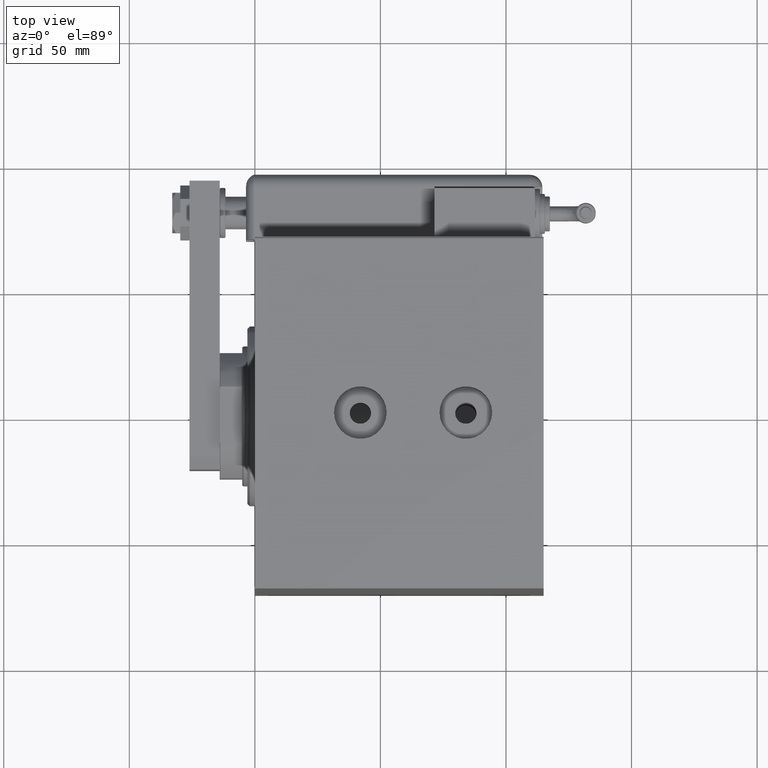
[diagram: clean part render]
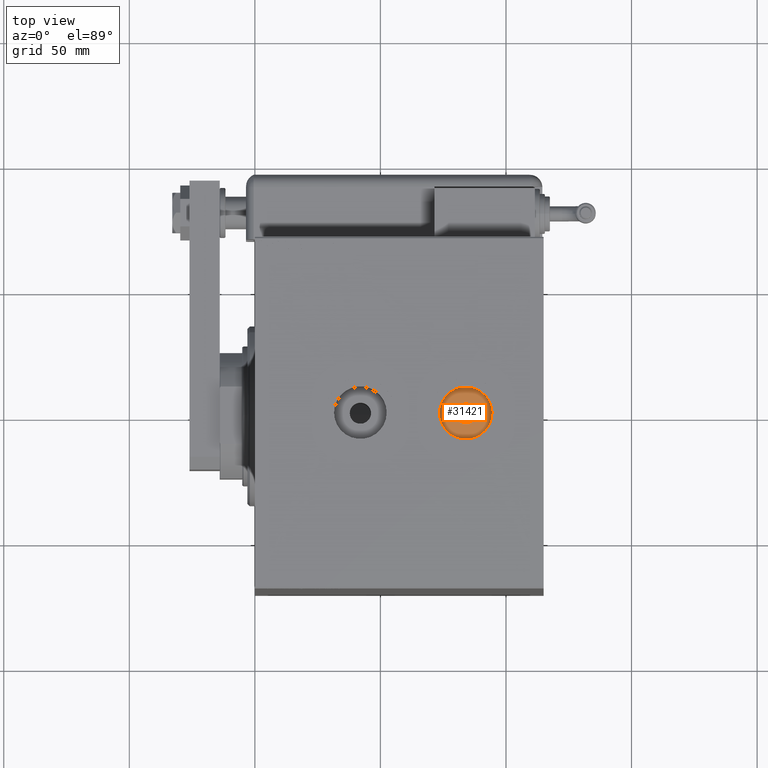
[diagram: same view with one face highlighted and labeled with its STEP entity id]
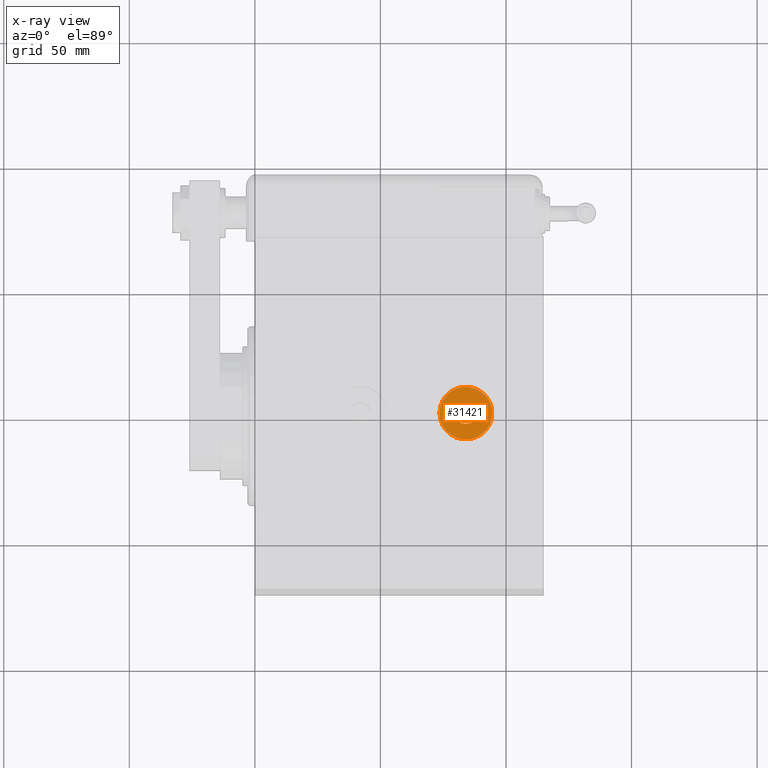
[diagram: x-ray of the same camera — body ghosted, the highlighted face saturated]
A machine part, top view. The second image highlights one B-rep face of the part: STEP entity #31421.
The next image is the same camera in x-ray: the body ghosted, the highlighted face saturated — about 0% of this face is hidden behind the body in this view.
In plain terms, the highlighted planar face has unit normal (0, 0, 1).
Its self-contained STEP definition (entity closure, byte-faithful):
#356 = CARTESIAN_POINT ( 'NONE',  ( 83.99999999999998579, -8.425799740458776865E-15, 71.73999999999998067 ) ) ;
#2576 = CARTESIAN_POINT ( 'NONE',  ( 73.51999999999998181, -7.142369894952349799E-15, 71.73999999999998067 ) ) ;
#4415 = ORIENTED_EDGE ( 'NONE', *, *, #59047, .T. ) ;
#5944 = EDGE_LOOP ( 'NONE', ( #38056, #4415 ) ) ;
#7044 = CARTESIAN_POINT ( 'NONE',  ( 83.99999999999998579, -8.425799740458776865E-15, 71.73999999999998067 ) ) ;
#10275 = CIRCLE ( 'NONE', #35957, 4.250000000000003553 ) ;
#10283 = DIRECTION ( 'NONE',  ( 1.000000000000000000, 0.000000000000000000, 0.000000000000000000 ) ) ;
#11567 = VERTEX_POINT ( 'NONE', #44406 ) ;
#15546 = DIRECTION ( 'NONE',  ( 0.000000000000000000, 0.000000000000000000, 1.000000000000000000 ) ) ;
#16556 = PLANE ( 'NONE',  #22930 ) ;
#16785 = ORIENTED_EDGE ( 'NONE', *, *, #41852, .F. ) ;
#17462 = DIRECTION ( 'NONE',  ( 1.000000000000000000, 0.000000000000000000, 0.000000000000000000 ) ) ;
#20811 = ORIENTED_EDGE ( 'NONE', *, *, #36636, .F. ) ;
#21810 = DIRECTION ( 'NONE',  ( 0.000000000000000000, 0.000000000000000000, 1.000000000000000000 ) ) ;
#22852 = CARTESIAN_POINT ( 'NONE',  ( 83.99999999999998579, -8.425799740458776865E-15, 71.73999999999998067 ) ) ;
#22930 = AXIS2_PLACEMENT_3D ( 'NONE', #30482, #45318, #31393 ) ;
#25623 = DIRECTION ( 'NONE',  ( 1.000000000000000000, 0.000000000000000000, 0.000000000000000000 ) ) ;
#26238 = AXIS2_PLACEMENT_3D ( 'NONE', #356, #15546, #10283 ) ;
#26447 = FACE_OUTER_BOUND ( 'NONE', #5944, .T. ) ;
#26710 = VERTEX_POINT ( 'NONE', #55776 ) ;
#30482 = CARTESIAN_POINT ( 'NONE',  ( 83.99999999999998579, -8.425799740458776865E-15, 71.73999999999998067 ) ) ;
#31393 = DIRECTION ( 'NONE',  ( 1.000000000000000000, 0.000000000000000000, -0.000000000000000000 ) ) ;
#31421 = ADVANCED_FACE ( 'NONE', ( #49960, #26447 ), #16556, .T. ) ;
#33235 = CIRCLE ( 'NONE', #34224, 10.48000000000000398 ) ;
#34224 = AXIS2_PLACEMENT_3D ( 'NONE', #7044, #49142, #25623 ) ;
#35853 = VERTEX_POINT ( 'NONE', #51761 ) ;
#35957 = AXIS2_PLACEMENT_3D ( 'NONE', #22852, #41724, #51316 ) ;
#36636 = EDGE_CURVE ( 'NONE', #26710, #35853, #10275, .T. ) ;
#38056 = ORIENTED_EDGE ( 'NONE', *, *, #47646, .T. ) ;
#40053 = CIRCLE ( 'NONE', #26238, 10.48000000000000398 ) ;
#40415 = EDGE_LOOP ( 'NONE', ( #16785, #20811 ) ) ;
#41632 = VERTEX_POINT ( 'NONE', #2576 ) ;
#41724 = DIRECTION ( 'NONE',  ( 0.000000000000000000, 0.000000000000000000, 1.000000000000000000 ) ) ;
#41852 = EDGE_CURVE ( 'NONE', #35853, #26710, #48008, .T. ) ;
#44406 = CARTESIAN_POINT ( 'NONE',  ( 94.47999999999998977, -8.425799740458776865E-15, 71.73999999999998067 ) ) ;
#45020 = CARTESIAN_POINT ( 'NONE',  ( 83.99999999999998579, -8.425799740458776865E-15, 71.73999999999998067 ) ) ;
#45318 = DIRECTION ( 'NONE',  ( 0.000000000000000000, 0.000000000000000000, 1.000000000000000000 ) ) ;
#47646 = EDGE_CURVE ( 'NONE', #11567, #41632, #33235, .T. ) ;
#48008 = CIRCLE ( 'NONE', #58901, 4.250000000000003553 ) ;
#49142 = DIRECTION ( 'NONE',  ( 0.000000000000000000, 0.000000000000000000, 1.000000000000000000 ) ) ;
#49960 = FACE_BOUND ( 'NONE', #40415, .T. ) ;
#51316 = DIRECTION ( 'NONE',  ( 1.000000000000000000, 0.000000000000000000, 0.000000000000000000 ) ) ;
#51761 = CARTESIAN_POINT ( 'NONE',  ( 88.25000000000000000, -8.425799740458776865E-15, 71.73999999999998067 ) ) ;
#55776 = CARTESIAN_POINT ( 'NONE',  ( 79.74999999999998579, -7.905324850821150908E-15, 71.73999999999998067 ) ) ;
#58901 = AXIS2_PLACEMENT_3D ( 'NONE', #45020, #21810, #17462 ) ;
#59047 = EDGE_CURVE ( 'NONE', #41632, #11567, #40053, .T. ) ;